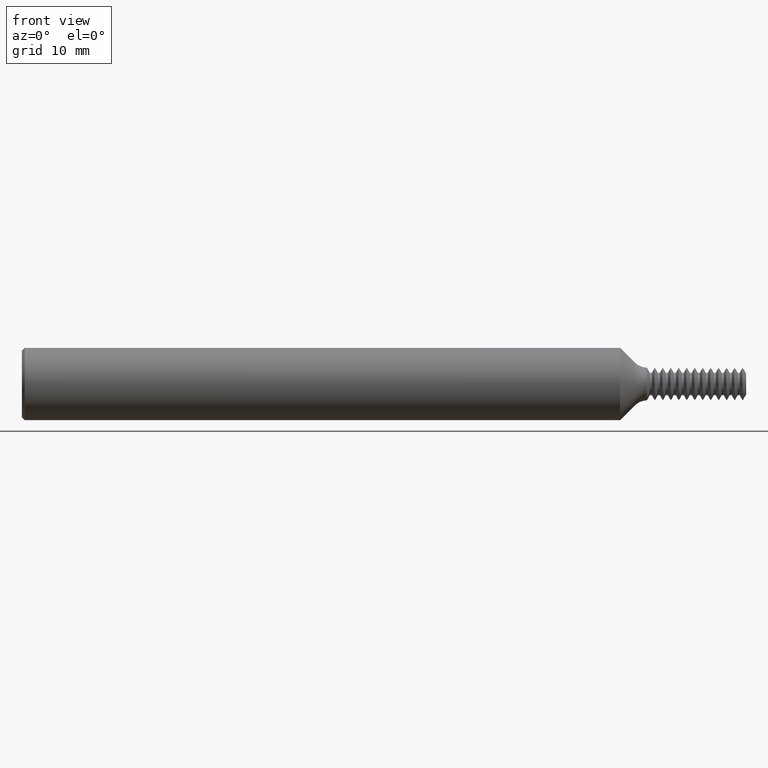
[diagram: clean part render]
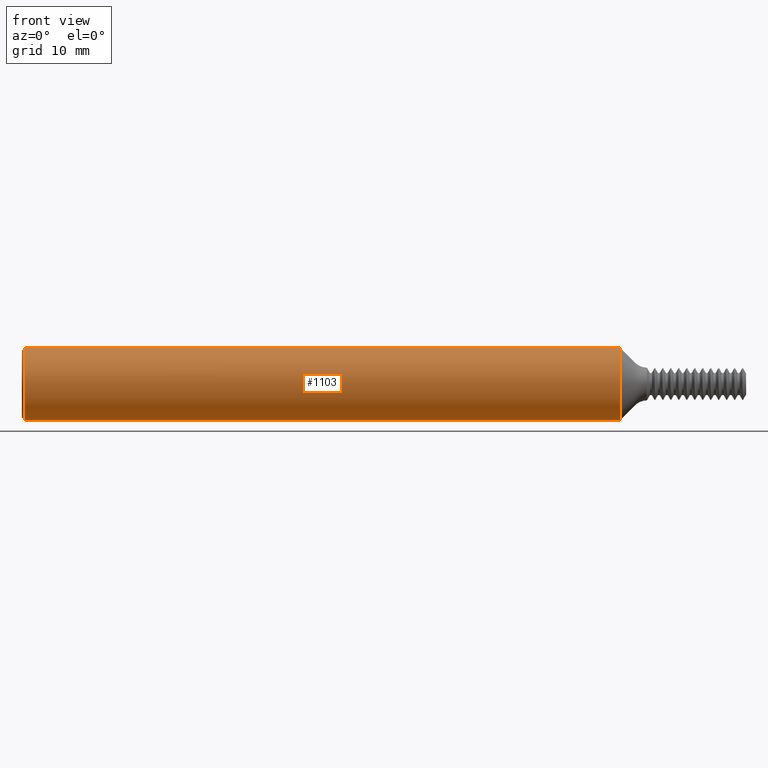
[diagram: same view with one face highlighted and labeled with its STEP entity id]
A machine part, front view. The second image highlights one B-rep face of the part: STEP entity #1103.
In plain terms, the highlighted cylindrical surface (edge-blend (fillet) strip) has radius 3.1712 mm, axis along (-1, -0, -0).
Its self-contained STEP definition (entity closure, byte-faithful):
#59 = EDGE_CURVE ( 'NONE', #1970, #1485, #2066, .T. ) ;
#90 = DIRECTION ( 'NONE',  ( 0.000000000000000000, 0.000000000000000000, 1.000000000000000000 ) ) ;
#118 = CARTESIAN_POINT ( 'NONE',  ( 2.064999999999999947, 1.528971528735470422E-17, -0.1248500000000000026 ) ) ;
#339 = DIRECTION ( 'NONE',  ( -1.000000000000000000, -0.000000000000000000, -0.000000000000000000 ) ) ;
#350 = ORIENTED_EDGE ( 'NONE', *, *, #59, .T. ) ;
#382 = DIRECTION ( 'NONE',  ( 0.000000000000000000, 0.000000000000000000, 1.000000000000000000 ) ) ;
#433 = VERTEX_POINT ( 'NONE', #2181 ) ;
#508 = EDGE_CURVE ( 'NONE', #660, #1485, #726, .T. ) ;
#643 = LINE ( 'NONE', #1083, #2369 ) ;
#660 = VERTEX_POINT ( 'NONE', #118 ) ;
#726 = LINE ( 'NONE', #2284, #2008 ) ;
#740 = CARTESIAN_POINT ( 'NONE',  ( 0.01000000000000014939, 0.000000000000000000, 0.000000000000000000 ) ) ;
#796 = CARTESIAN_POINT ( 'NONE',  ( 0.01000000000000014939, 0.000000000000000000, -0.1248500000000000026 ) ) ;
#1083 = CARTESIAN_POINT ( 'NONE',  ( 0.000000000000000000, 0.000000000000000000, 0.1248500000000000026 ) ) ;
#1103 = ADVANCED_FACE ( 'NONE', ( #1244 ), #2335, .T. ) ;
#1152 = DIRECTION ( 'NONE',  ( -1.000000000000000000, -0.000000000000000000, -0.000000000000000000 ) ) ;
#1223 = AXIS2_PLACEMENT_3D ( 'NONE', #1320, #2195, #90 ) ;
#1244 = FACE_OUTER_BOUND ( 'NONE', #2596, .T. ) ;
#1320 = CARTESIAN_POINT ( 'NONE',  ( 2.064999999999999947, 0.000000000000000000, 0.000000000000000000 ) ) ;
#1447 = ORIENTED_EDGE ( 'NONE', *, *, #508, .F. ) ;
#1485 = VERTEX_POINT ( 'NONE', #796 ) ;
#1584 = CIRCLE ( 'NONE', #1223, 0.1248500000000000026 ) ;
#1698 = EDGE_CURVE ( 'NONE', #433, #1970, #643, .T. ) ;
#1733 = ORIENTED_EDGE ( 'NONE', *, *, #1743, .T. ) ;
#1743 = EDGE_CURVE ( 'NONE', #660, #433, #1584, .T. ) ;
#1753 = ORIENTED_EDGE ( 'NONE', *, *, #1698, .T. ) ;
#1813 = DIRECTION ( 'NONE',  ( 1.000000000000000000, 0.000000000000000000, 0.000000000000000000 ) ) ;
#1970 = VERTEX_POINT ( 'NONE', #2778 ) ;
#2008 = VECTOR ( 'NONE', #1152, 39.37007874015748143 ) ;
#2014 = AXIS2_PLACEMENT_3D ( 'NONE', #740, #1813, #2064 ) ;
#2064 = DIRECTION ( 'NONE',  ( 0.000000000000000000, 0.000000000000000000, -1.000000000000000000 ) ) ;
#2066 = CIRCLE ( 'NONE', #2014, 0.1248500000000000026 ) ;
#2103 = CARTESIAN_POINT ( 'NONE',  ( 0.000000000000000000, 0.000000000000000000, 0.000000000000000000 ) ) ;
#2181 = CARTESIAN_POINT ( 'NONE',  ( 2.064999999999999947, 0.000000000000000000, 0.1248500000000000026 ) ) ;
#2195 = DIRECTION ( 'NONE',  ( -1.000000000000000000, -0.000000000000000000, -0.000000000000000000 ) ) ;
#2284 = CARTESIAN_POINT ( 'NONE',  ( 0.000000000000000000, 1.528971528735470422E-17, -0.1248500000000000026 ) ) ;
#2335 = CYLINDRICAL_SURFACE ( 'NONE', #2505, 0.1248500000000000026 ) ;
#2369 = VECTOR ( 'NONE', #2382, 39.37007874015748143 ) ;
#2382 = DIRECTION ( 'NONE',  ( -1.000000000000000000, -0.000000000000000000, -0.000000000000000000 ) ) ;
#2505 = AXIS2_PLACEMENT_3D ( 'NONE', #2103, #339, #382 ) ;
#2596 = EDGE_LOOP ( 'NONE', ( #1447, #1733, #1753, #350 ) ) ;
#2778 = CARTESIAN_POINT ( 'NONE',  ( 0.01000000000000014939, 1.528971528735470422E-17, 0.1248500000000000026 ) ) ;